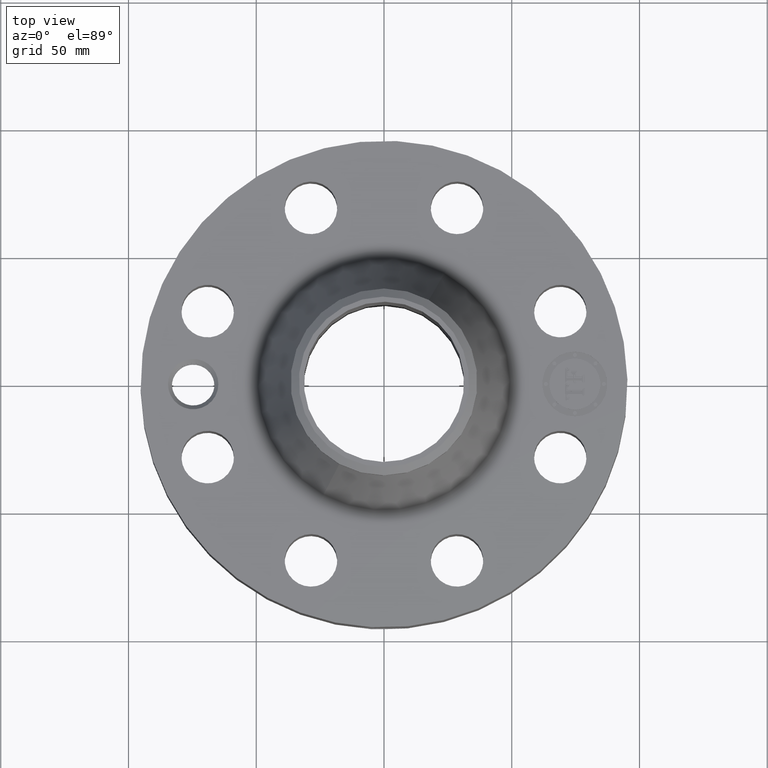
[diagram: clean part render]
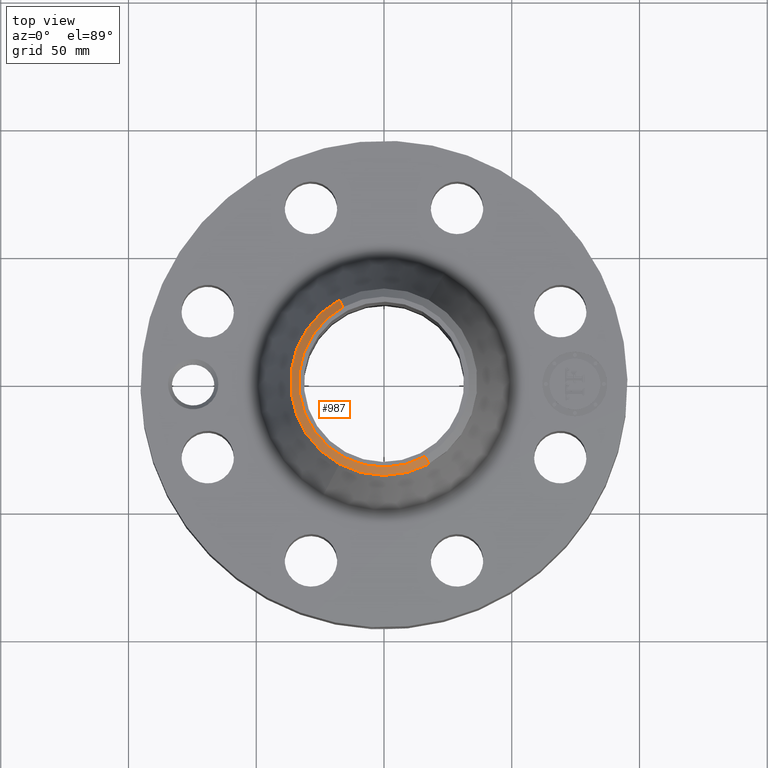
[diagram: same view with one face highlighted and labeled with its STEP entity id]
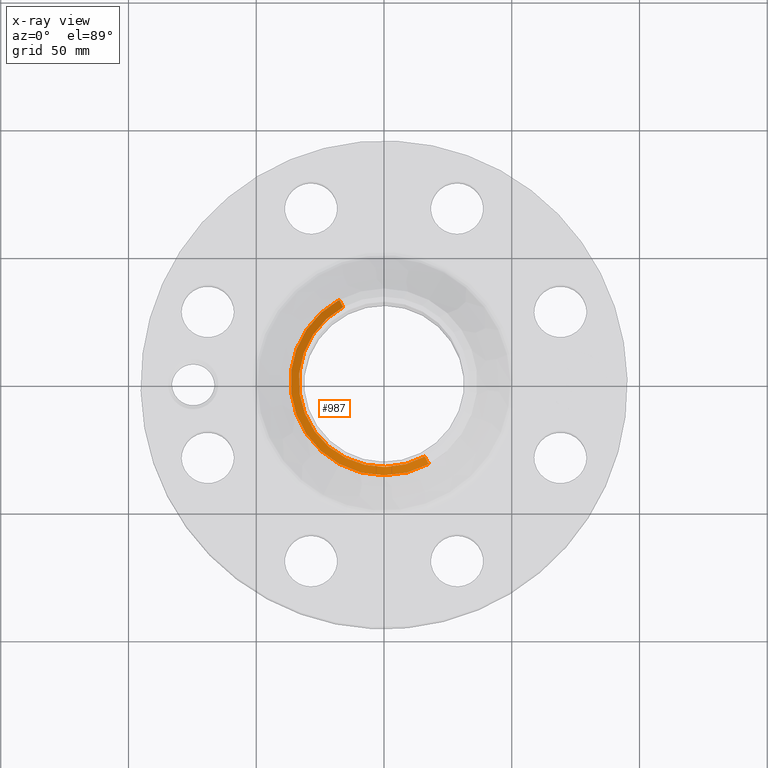
[diagram: x-ray of the same camera — body ghosted, the highlighted face saturated]
A machine part, top view. The second image highlights one B-rep face of the part: STEP entity #987.
The next image is the same camera in x-ray: the body ghosted, the highlighted face saturated — about 0% of this face is hidden behind the body in this view.
In plain terms, the highlighted conical surface has half-angle 52.5 deg.
Its self-contained STEP definition (entity closure, byte-faithful):
#524=AXIS2_PLACEMENT_3D('Circle Axis2P3D',#522,#523,$) ;
#952=AXIS2_PLACEMENT_3D('Cone Axis2P3D',#949,#950,#951) ;
#970=AXIS2_PLACEMENT_3D('Circle Axis2P3D',#968,#969,$) ;
#977=AXIS2_PLACEMENT_3D('Circle Axis2P3D',#975,#976,$) ;
#517=CARTESIAN_POINT('Vertex',(0.629600869819,-1.15247666178,3.81300000002)) ;
#519=CARTESIAN_POINT('Vertex',(-0.629600869819,1.15247666178,3.81300000002)) ;
#522=CARTESIAN_POINT('Axis2P3D Location',(0.,0.,3.81300000002)) ;
#949=CARTESIAN_POINT('Axis2P3D Location',(0.,0.,3.81300000002)) ;
#954=CARTESIAN_POINT('Line Origine',(0.659986822706,-1.20809777546,3.76436687594)) ;
#958=CARTESIAN_POINT('Vertex',(0.690372775593,-1.26371888913,3.71573375186)) ;
#961=CARTESIAN_POINT('Line Origine',(-0.659986822706,1.20809777546,3.76436687594)) ;
#965=CARTESIAN_POINT('Vertex',(-0.690372775593,1.26371888913,3.71573375186)) ;
#968=CARTESIAN_POINT('Axis2P3D Location',(0.,0.,3.71573375186)) ;
#972=CARTESIAN_POINT('Vertex',(-0.690372775593,-1.26371888913,3.71573375186)) ;
#975=CARTESIAN_POINT('Axis2P3D Location',(0.,0.,3.71573375186)) ;
#523=DIRECTION('Axis2P3D Direction',(0.,0.,-0.0393700787402)) ;
#950=DIRECTION('Axis2P3D Direction',(-0.,-0.,-0.0393700787402)) ;
#951=DIRECTION('Axis2P3D XDirection',(-0.0188750212049,0.0345504945626,0.)) ;
#955=DIRECTION('Vector Direction',(0.014974561121,-0.02741075027,-0.023966985394)) ;
#962=DIRECTION('Vector Direction',(-0.014974561121,0.02741075027,-0.023966985394)) ;
#969=DIRECTION('Axis2P3D Direction',(0.,0.,-0.0393700787402)) ;
#976=DIRECTION('Axis2P3D Direction',(0.,0.,-0.0393700787402)) ;
#956=VECTOR('Line Direction',#955,0.0393700787402) ;
#963=VECTOR('Line Direction',#962,0.0393700787402) ;
#981=ORIENTED_EDGE('',*,*,#960,.F.) ;
#982=ORIENTED_EDGE('',*,*,#526,.F.) ;
#983=ORIENTED_EDGE('',*,*,#967,.T.) ;
#984=ORIENTED_EDGE('',*,*,#974,.T.) ;
#985=ORIENTED_EDGE('',*,*,#979,.F.) ;
#987=ADVANCED_FACE('PartBody',(#986),#953,.T.) ;
#525=CIRCLE('generated circle',#524,1.31324015749) ;
#971=CIRCLE('generated circle',#970,1.44000000001) ;
#978=CIRCLE('generated circle',#977,1.44000000001) ;
#953=CONICAL_SURFACE('Cone',#952,1.31324015749,0.916297857297) ;
#526=EDGE_CURVE('',#520,#518,#525,.F.) ;
#960=EDGE_CURVE('',#518,#959,#957,.T.) ;
#967=EDGE_CURVE('',#520,#966,#964,.T.) ;
#974=EDGE_CURVE('',#966,#973,#971,.F.) ;
#979=EDGE_CURVE('',#959,#973,#978,.T.) ;
#980=EDGE_LOOP('',(#981,#982,#983,#984,#985)) ;
#986=FACE_OUTER_BOUND('',#980,.T.) ;
#957=LINE('Line',#954,#956) ;
#964=LINE('Line',#961,#963) ;
#518=VERTEX_POINT('',#517) ;
#520=VERTEX_POINT('',#519) ;
#959=VERTEX_POINT('',#958) ;
#966=VERTEX_POINT('',#965) ;
#973=VERTEX_POINT('',#972) ;